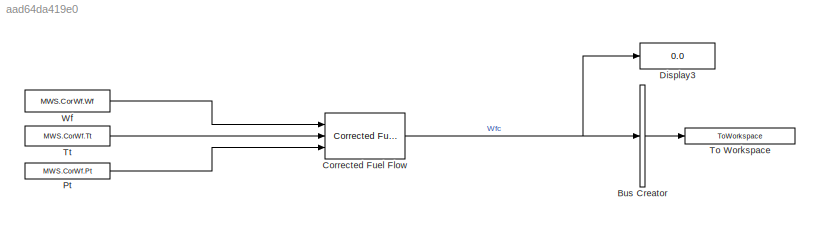
MODEL slx_aad64da419e0
KIND model
CONFIG AbsTol = auto
CONFIG EnableMultiTasking = on
CONFIG FixedStep = 1
CONFIG MaxStep = auto
CONFIG MinStep = auto
CONFIG RelTol = 1e-3
CONFIG SampleTimeConstraint = Unconstrained
CONFIG Solver = FixedStepDiscrete
CONFIG SolverName = FixedStepDiscrete
CONFIG StartTime = 0.0
CONFIG StopTime = 1
BLOCK [BusCreator] Bus Creator
  DisplayOption = bar
  InheritFromInputs = on
  Inputs = 1
  Ports = [1, 1]
BLOCK [Reference] Corrected Fuel Flow  REF=Lib_Cntrl_CorrectedFuelFlow_TMATS/Corrected Fuel Flow
  Ports = [3, 1]
  SourceBlock = Lib_Cntrl_CorrectedFuelFlow_TMATS/Corrected Fuel Flow
  SourceType = T-MATS: Corrected Fuel Flow Library Block
BLOCK [Display] Display3
  Decimation = 1
  Format = long
  Ports = [1]
BLOCK [Constant] Pt
  Value = MWS.CorWf.Pt
BLOCK [ToWorkspace] To Workspace
  MaxDataPoints = inf
  Ports = [1]
  SampleTime = -1
  VariableName = TB_Output
BLOCK [Constant] Tt
  Value = MWS.CorWf.Tt
BLOCK [Constant] Wf
  Value = MWS.CorWf.Wf
LINE Bus Creator:1 -> To Workspace:1
NET Corrected Fuel Flow:1 -> Bus Creator:1, Display3:1
LINE Pt:1 -> Corrected Fuel Flow:3
LINE Tt:1 -> Corrected Fuel Flow:2
LINE Wf:1 -> Corrected Fuel Flow:1
note: NET lines group one-source signal fan-out (src -> all destinations, sorted); 1:1 wires keep LINE
